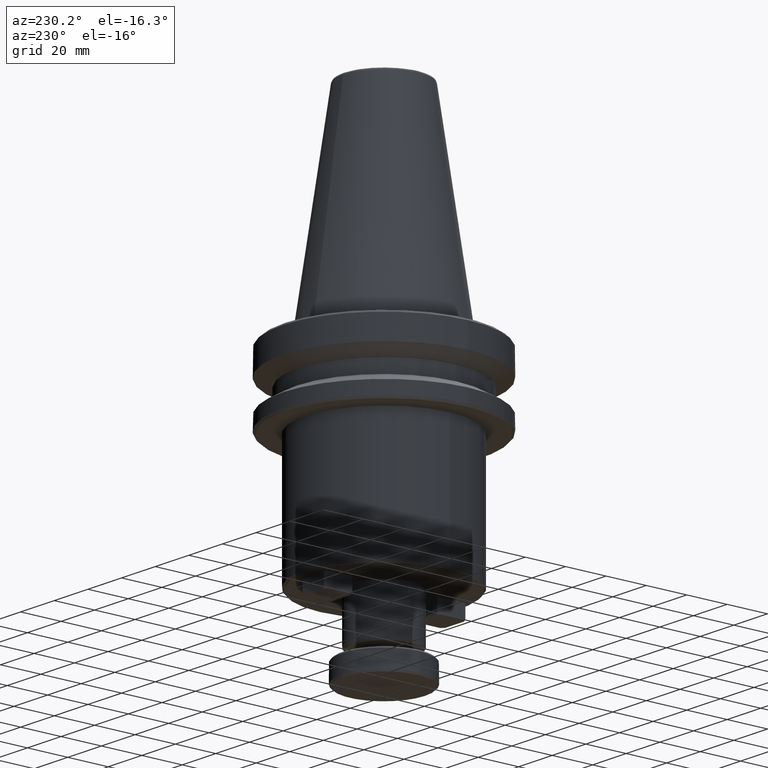
[diagram: clean part render]
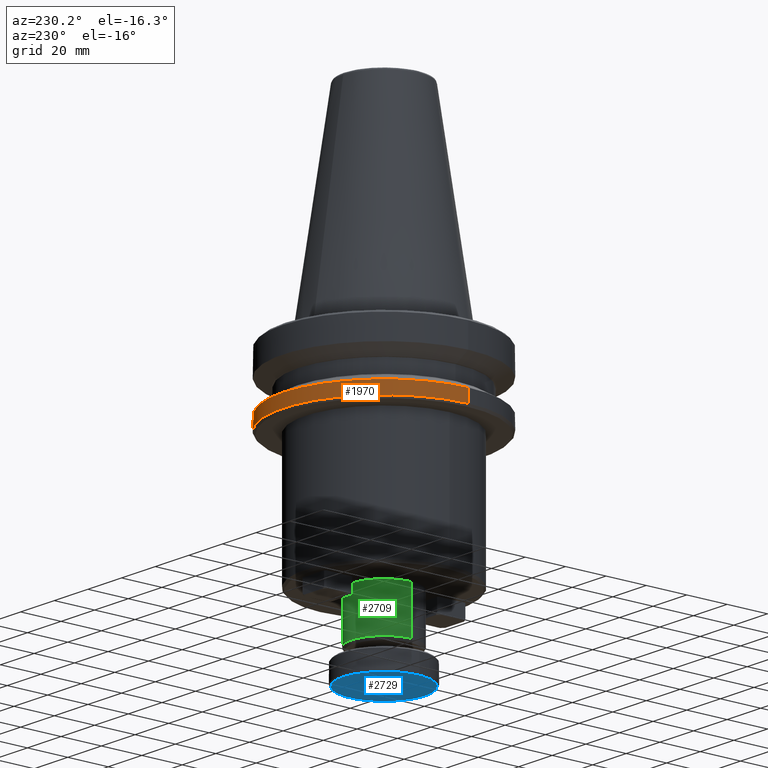
[diagram: same view with three faces highlighted in distinct colors, each labeled with its STEP entity id]
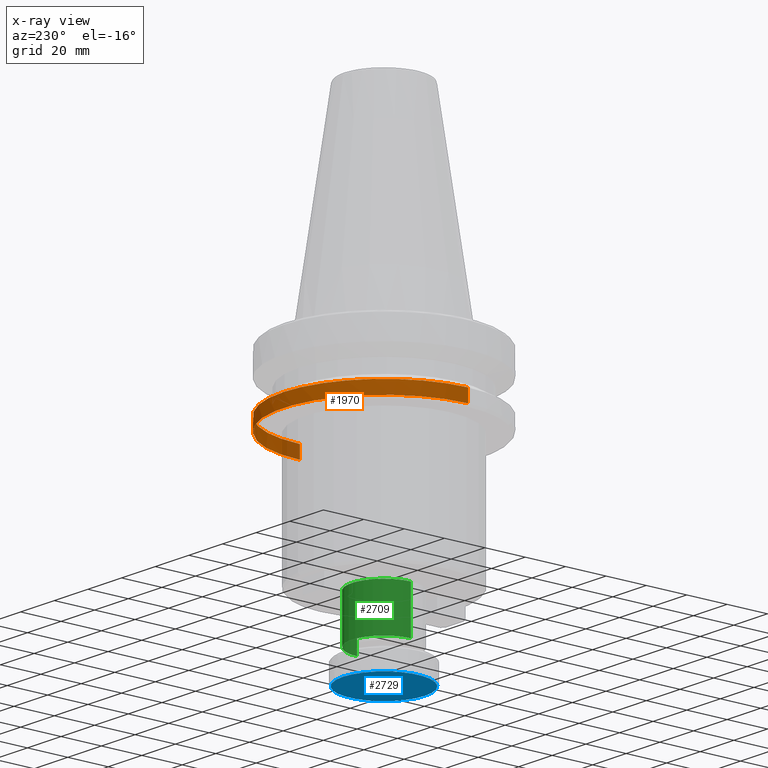
[diagram: x-ray of the same camera — body ghosted, the three highlighted faces saturated]
A machine part, auxiliary view with three faces highlighted in distinct colors.
The next image is the same camera in x-ray (body ghosted, the three faces saturated) — at least one of them is partly hidden behind the body in this view.
Their STEP definitions:

[orange] entity #1970 — the highlighted cylindrical surface (partial cylindrical patch) has radius 50 mm, axis along (0, 0, 1).
#39 = VERTEX_POINT ( 'NONE', #2379 ) ;
#88 = AXIS2_PLACEMENT_3D ( 'NONE', #2117, #1820, #2637 ) ;
#99 = EDGE_CURVE ( 'NONE', #1038, #1126, #395, .T. ) ;
#198 = ORIENTED_EDGE ( 'NONE', *, *, #207, .T. ) ;
#207 = EDGE_CURVE ( 'NONE', #1038, #2752, #2538, .T. ) ;
#281 = ORIENTED_EDGE ( 'NONE', *, *, #528, .T. ) ;
#311 = ORIENTED_EDGE ( 'NONE', *, *, #1289, .F. ) ;
#340 = ORIENTED_EDGE ( 'NONE', *, *, #2572, .F. ) ;
#343 = FACE_OUTER_BOUND ( 'NONE', #1156, .T. ) ;
#382 = DIRECTION ( 'NONE',  ( -1.000000000000000000, 0.0000000000000000000, 0.0000000000000000000 ) ) ;
#395 = LINE ( 'NONE', #2447, #1437 ) ;
#406 = DIRECTION ( 'NONE',  ( -0.0000000000000000000, -0.0000000000000000000, 1.000000000000000000 ) ) ;
#416 = CARTESIAN_POINT ( 'NONE',  ( 0.0000000000000000000, 0.0000000000000000000, -30.69977999677324100 ) ) ;
#524 = CARTESIAN_POINT ( 'NONE',  ( -50.00000000000000000, 6.123233995736766100E-015, -37.00000000000002100 ) ) ;
#528 = EDGE_CURVE ( 'NONE', #2752, #974, #1858, .T. ) ;
#530 = DIRECTION ( 'NONE',  ( -1.000000000000000000, -8.881784197001252300E-016, 0.0000000000000000000 ) ) ;
#533 = DIRECTION ( 'NONE',  ( -0.0000000000000000000, -0.0000000000000000000, 1.000000000000000000 ) ) ;
#536 = CARTESIAN_POINT ( 'NONE',  ( 0.0000000000000000000, 0.0000000000000000000, -30.69977999677324100 ) ) ;
#671 = CIRCLE ( 'NONE', #2110, 49.99999999999998600 ) ;
#788 = CYLINDRICAL_SURFACE ( 'NONE', #88, 50.00000000000000000 ) ;
#838 = CARTESIAN_POINT ( 'NONE',  ( 49.99999999999999300, 0.0000000000000000000, -30.69977999677324100 ) ) ;
#900 = CARTESIAN_POINT ( 'NONE',  ( 50.00000000000000000, 0.0000000000000000000, -37.00000000000002100 ) ) ;
#970 = CARTESIAN_POINT ( 'NONE',  ( -49.99999999999999300, 6.123233995736765300E-015, -30.69977999677324100 ) ) ;
#974 = VERTEX_POINT ( 'NONE', #970 ) ;
#1038 = VERTEX_POINT ( 'NONE', #900 ) ;
#1042 = AXIS2_PLACEMENT_3D ( 'NONE', #2518, #1976, #2135 ) ;
#1126 = VERTEX_POINT ( 'NONE', #838 ) ;
#1156 = EDGE_LOOP ( 'NONE', ( #198, #281, #311, #340, #2599 ) ) ;
#1289 = EDGE_CURVE ( 'NONE', #39, #974, #671, .T. ) ;
#1380 = DIRECTION ( 'NONE',  ( 0.0000000000000000000, 0.0000000000000000000, 1.000000000000000000 ) ) ;
#1387 = CARTESIAN_POINT ( 'NONE',  ( -50.00000000000000000, 6.123233995736766100E-015, 124.5046326327850600 ) ) ;
#1437 = VECTOR ( 'NONE', #2290, 1000.000000000000000 ) ;
#1787 = CIRCLE ( 'NONE', #2155, 49.99999999999998600 ) ;
#1820 = DIRECTION ( 'NONE',  ( 0.0000000000000000000, 0.0000000000000000000, 1.000000000000000000 ) ) ;
#1858 = LINE ( 'NONE', #1387, #2370 ) ;
#1970 = ADVANCED_FACE ( 'NONE', ( #343 ), #788, .T. ) ;
#1976 = DIRECTION ( 'NONE',  ( 0.0000000000000000000, 0.0000000000000000000, 1.000000000000000000 ) ) ;
#2110 = AXIS2_PLACEMENT_3D ( 'NONE', #536, #533, #530 ) ;
#2117 = CARTESIAN_POINT ( 'NONE',  ( 0.0000000000000000000, 0.0000000000000000000, 124.5046326327850600 ) ) ;
#2135 = DIRECTION ( 'NONE',  ( 1.000000000000000000, 0.0000000000000000000, 0.0000000000000000000 ) ) ;
#2155 = AXIS2_PLACEMENT_3D ( 'NONE', #416, #406, #382 ) ;
#2290 = DIRECTION ( 'NONE',  ( 0.0000000000000000000, 0.0000000000000000000, 1.000000000000000000 ) ) ;
#2370 = VECTOR ( 'NONE', #1380, 1000.000000000000000 ) ;
#2379 = CARTESIAN_POINT ( 'NONE',  ( 0.0000000000000000000, 49.99999999999999300, -30.69977999677324100 ) ) ;
#2447 = CARTESIAN_POINT ( 'NONE',  ( 50.00000000000000000, 0.0000000000000000000, 124.5046326327850600 ) ) ;
#2518 = CARTESIAN_POINT ( 'NONE',  ( 0.0000000000000000000, 0.0000000000000000000, -37.00000000000002100 ) ) ;
#2538 = CIRCLE ( 'NONE', #1042, 50.00000000000000000 ) ;
#2572 = EDGE_CURVE ( 'NONE', #1126, #39, #1787, .T. ) ;
#2599 = ORIENTED_EDGE ( 'NONE', *, *, #99, .F. ) ;
#2637 = DIRECTION ( 'NONE',  ( 1.000000000000000000, 0.0000000000000000000, 0.0000000000000000000 ) ) ;
#2752 = VERTEX_POINT ( 'NONE', #524 ) ;

[blue] entity #2729 — the highlighted planar face has unit normal (0, 0, 1).
#16 = EDGE_CURVE ( 'NONE', #891, #2351, #1022, .T. ) ;
#173 = ORIENTED_EDGE ( 'NONE', *, *, #16, .F. ) ;
#224 = FACE_OUTER_BOUND ( 'NONE', #1977, .T. ) ;
#336 = AXIS2_PLACEMENT_3D ( 'NONE', #753, #2388, #576 ) ;
#404 = CIRCLE ( 'NONE', #336, 20.30000000000000100 ) ;
#576 = DIRECTION ( 'NONE',  ( 0.0000000000000000000, -1.000000000000000000, 0.0000000000000000000 ) ) ;
#753 = CARTESIAN_POINT ( 'NONE',  ( 0.0000000000000000000, 4.625929269271526300E-016, -138.0000000000000000 ) ) ;
#891 = VERTEX_POINT ( 'NONE', #1012 ) ;
#988 = DIRECTION ( 'NONE',  ( 0.0000000000000000000, 0.0000000000000000000, 1.000000000000000000 ) ) ;
#1012 = CARTESIAN_POINT ( 'NONE',  ( 2.528895640239284900E-015, 20.30000000000000100, -138.0000000000000000 ) ) ;
#1022 = CIRCLE ( 'NONE', #2334, 20.30000000000000100 ) ;
#1669 = CARTESIAN_POINT ( 'NONE',  ( 0.0000000000000000000, -20.30000000000000100, -138.0000000000000000 ) ) ;
#1833 = ORIENTED_EDGE ( 'NONE', *, *, #1894, .F. ) ;
#1889 = DIRECTION ( 'NONE',  ( 1.000000000000000000, 0.0000000000000000000, -0.0000000000000000000 ) ) ;
#1894 = EDGE_CURVE ( 'NONE', #2351, #891, #404, .T. ) ;
#1977 = EDGE_LOOP ( 'NONE', ( #1833, #173 ) ) ;
#2199 = CARTESIAN_POINT ( 'NONE',  ( 0.0000000000000000000, 4.625929269271526300E-016, -138.0000000000000000 ) ) ;
#2334 = AXIS2_PLACEMENT_3D ( 'NONE', #2199, #2496, #2499 ) ;
#2351 = VERTEX_POINT ( 'NONE', #1669 ) ;
#2388 = DIRECTION ( 'NONE',  ( 0.0000000000000000000, -6.608470384673550000E-016, 1.000000000000000000 ) ) ;
#2461 = CARTESIAN_POINT ( 'NONE',  ( 0.0000000000000000000, 20.30000000000000100, -138.0000000000000000 ) ) ;
#2496 = DIRECTION ( 'NONE',  ( 0.0000000000000000000, -6.608470384673550000E-016, 1.000000000000000000 ) ) ;
#2499 = DIRECTION ( 'NONE',  ( 0.0000000000000000000, -1.000000000000000000, 0.0000000000000000000 ) ) ;
#2727 = PLANE ( 'NONE',  #2760 ) ;
#2729 = ADVANCED_FACE ( 'NONE', ( #224 ), #2727, .F. ) ;
#2760 = AXIS2_PLACEMENT_3D ( 'NONE', #2461, #988, #1889 ) ;

[green] entity #2709 — the highlighted cylindrical surface (partial cylindrical patch) has radius 16 mm, axis along (0, 0, 1).
#52 = CARTESIAN_POINT ( 'NONE',  ( -16.00000000000002800, 1.959434878635769100E-015, -122.5277568135664400 ) ) ;
#62 = CARTESIAN_POINT ( 'NONE',  ( 16.00000000000002800, 0.0000000000000000000, -122.5277568135664400 ) ) ;
#74 = VERTEX_POINT ( 'NONE', #2305 ) ;
#220 = AXIS2_PLACEMENT_3D ( 'NONE', #1633, #1262, #1489 ) ;
#283 = DIRECTION ( 'NONE',  ( 1.000000000000000000, 0.0000000000000000000, 0.0000000000000000000 ) ) ;
#286 = DIRECTION ( 'NONE',  ( 0.0000000000000000000, 0.0000000000000000000, 1.000000000000000000 ) ) ;
#288 = CARTESIAN_POINT ( 'NONE',  ( 0.0000000000000000000, 0.0000000000000000000, -122.5277568135664400 ) ) ;
#378 = CARTESIAN_POINT ( 'NONE',  ( -16.00000000000001100, 1.959434878635766700E-015, 118.5507178974871000 ) ) ;
#426 = DIRECTION ( 'NONE',  ( 0.0000000000000000000, 0.0000000000000000000, 1.000000000000000000 ) ) ;
#431 = ORIENTED_EDGE ( 'NONE', *, *, #1301, .F. ) ;
#496 = DIRECTION ( 'NONE',  ( 1.000000000000000000, 0.0000000000000000000, 0.0000000000000000000 ) ) ;
#498 = DIRECTION ( 'NONE',  ( 0.0000000000000000000, 0.0000000000000000000, 1.000000000000000000 ) ) ;
#500 = CARTESIAN_POINT ( 'NONE',  ( 0.0000000000000000000, 0.0000000000000000000, -99.99999999999998600 ) ) ;
#529 = CARTESIAN_POINT ( 'NONE',  ( 16.00000000000001100, 0.0000000000000000000, 118.5507178974871000 ) ) ;
#541 = DIRECTION ( 'NONE',  ( 0.0000000000000000000, 0.0000000000000000000, 1.000000000000000000 ) ) ;
#1008 = ORIENTED_EDGE ( 'NONE', *, *, #1327, .F. ) ;
#1065 = ORIENTED_EDGE ( 'NONE', *, *, #1547, .T. ) ;
#1150 = CARTESIAN_POINT ( 'NONE',  ( -16.00000000000001100, 1.959434878635766700E-015, -99.99999999999998600 ) ) ;
#1155 = CIRCLE ( 'NONE', #2086, 16.00000000000001100 ) ;
#1262 = DIRECTION ( 'NONE',  ( 0.0000000000000000000, 0.0000000000000000000, 1.000000000000000000 ) ) ;
#1301 = EDGE_CURVE ( 'NONE', #1699, #74, #1312, .T. ) ;
#1312 = LINE ( 'NONE', #529, #1856 ) ;
#1327 = EDGE_CURVE ( 'NONE', #74, #2667, #1155, .T. ) ;
#1426 = LINE ( 'NONE', #378, #2692 ) ;
#1474 = EDGE_CURVE ( 'NONE', #1712, #2667, #1426, .T. ) ;
#1489 = DIRECTION ( 'NONE',  ( 1.000000000000000000, 0.0000000000000000000, 0.0000000000000000000 ) ) ;
#1547 = EDGE_CURVE ( 'NONE', #1699, #1712, #1628, .T. ) ;
#1628 = CIRCLE ( 'NONE', #1693, 16.00000000000001100 ) ;
#1633 = CARTESIAN_POINT ( 'NONE',  ( 0.0000000000000000000, 0.0000000000000000000, 118.5507178974871000 ) ) ;
#1693 = AXIS2_PLACEMENT_3D ( 'NONE', #288, #286, #283 ) ;
#1699 = VERTEX_POINT ( 'NONE', #62 ) ;
#1712 = VERTEX_POINT ( 'NONE', #52 ) ;
#1722 = EDGE_LOOP ( 'NONE', ( #1065, #2345, #1008, #431 ) ) ;
#1856 = VECTOR ( 'NONE', #541, 1000.000000000000000 ) ;
#2086 = AXIS2_PLACEMENT_3D ( 'NONE', #500, #498, #496 ) ;
#2305 = CARTESIAN_POINT ( 'NONE',  ( 16.00000000000001100, 0.0000000000000000000, -99.99999999999998600 ) ) ;
#2345 = ORIENTED_EDGE ( 'NONE', *, *, #1474, .T. ) ;
#2653 = CYLINDRICAL_SURFACE ( 'NONE', #220, 16.00000000000001100 ) ;
#2667 = VERTEX_POINT ( 'NONE', #1150 ) ;
#2692 = VECTOR ( 'NONE', #426, 1000.000000000000000 ) ;
#2705 = FACE_OUTER_BOUND ( 'NONE', #1722, .T. ) ;
#2709 = ADVANCED_FACE ( 'NONE', ( #2705 ), #2653, .T. ) ;